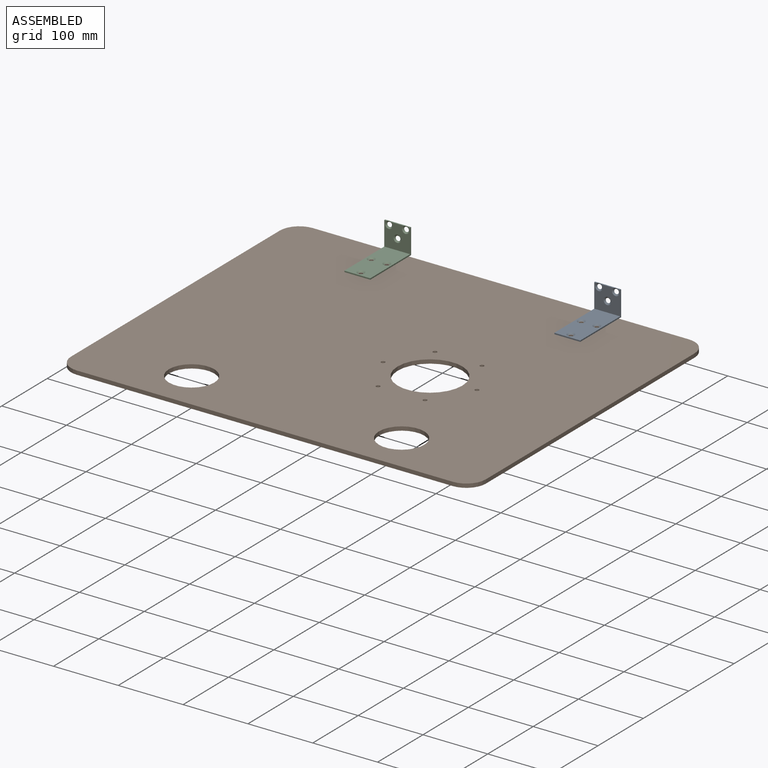
[diagram: assembled view]
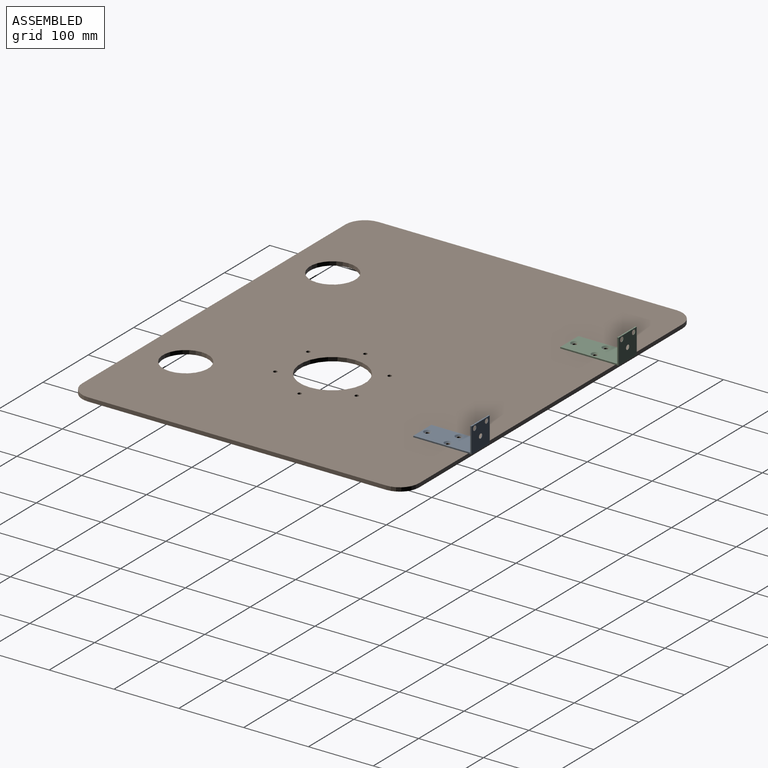
[diagram: assembled view, second angle]
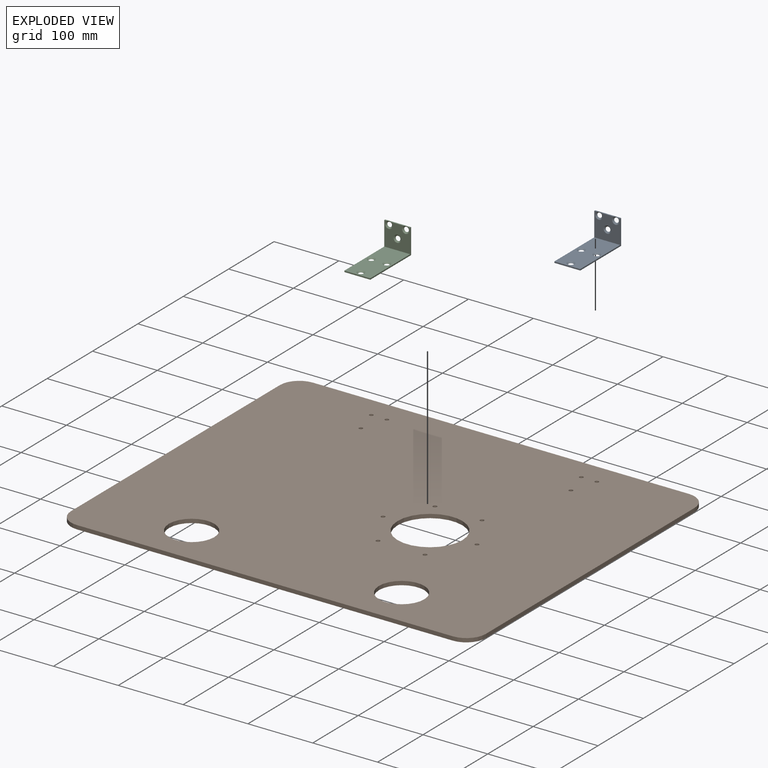
[diagram: exploded view]
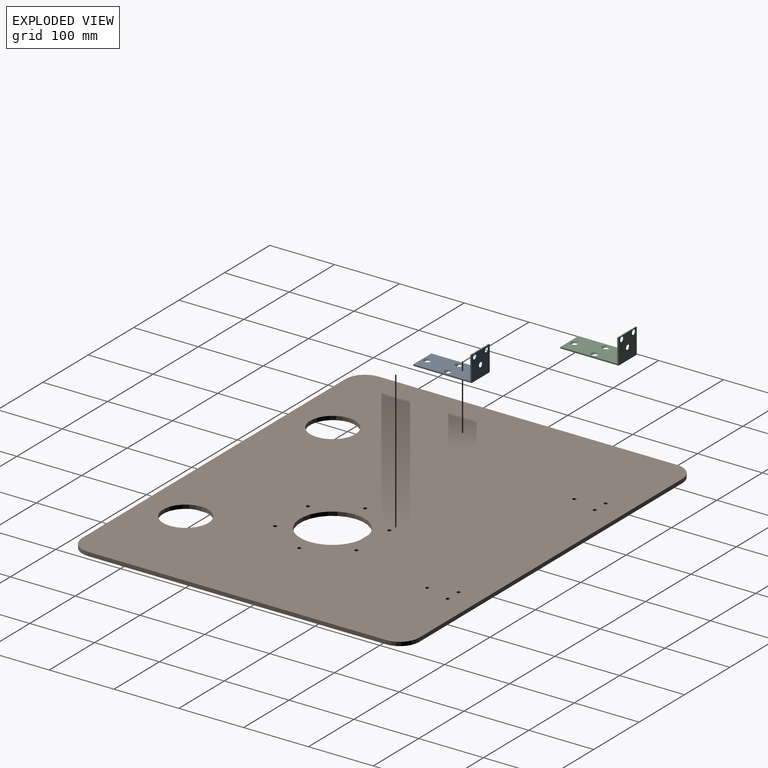
[diagram: exploded view, second angle]
ASSEMBLY  parts=3 mates=2
PART A: 14 faces, bbox 90x40x39.6 mm
  f0: plane 40x2mm, normal (0,0,1), area 76mm2, adj f3,f4,f6,f7,f12,f13
  f1: plane 40x2mm, normal (-1,0,0), area 80mm2, adj f2,f5,f6,f7
  f2: plane 90x40mm, normal (0,0,-1), area 3477.9mm2, adj f1,f3,f6,f7,f8,f9,f10
  f3: plane 40x39mm, normal (1,0,0), area 1437.9mm2, adj f0,f2,f6,f7,f11,f12,f13
  f4: plane 40x37mm, normal (-1,0,0), area 1188.5mm2, adj f0,f5,f6,f7,f11,f12,f13
  f5: plane 88x40mm, normal (0,0,1), area 3224.4mm2, adj f1,f4,f6,f7,f8,f9,f10
  f6: plane 90x39mm, normal (0,-1,0), area 254mm2, adj f0,f1,f2,f3,f4,f5
  f7: plane 90x39mm, normal (0,1,0), area 254mm2, adj f0,f1,f2,f3,f4,f5
  f8: cone r=2.65mm half-angle=45deg, axis (0,0,1), area 81.7mm2, adj f2,f5
  f9: cone r=2.65mm half-angle=45deg, axis (0,0,1), area 81.7mm2, adj f2,f5
  f10: cone r=2.65mm half-angle=45deg, axis (0,0,1), area 81.7mm2, adj f2,f5
  f11: cone r=2.65mm half-angle=45deg, axis (-1,0,0), area 81.7mm2, adj f3,f4
  f12: cone r=2.65mm half-angle=45deg, axis (-1,0,0), area 78.9mm2, adj f0,f3,f4
  f13: cone r=2.65mm half-angle=45deg, axis (-1,0,0), area 78.9mm2, adj f0,f3,f4
PART B: 25 faces, bbox 640x520x6 mm
  f0: plane 580x6mm, normal (0,1,0), area 3480mm2, adj f4,f5,f7,f10
  f1: plane 460x6mm, normal (-1,0,0), area 2760mm2, adj f4,f5,f7,f8
  f2: plane 580x6mm, normal (0,-1,0), area 3480mm2, adj f4,f5,f8,f9
  f3: plane 460x6mm, normal (1,0,0), area 2760mm2, adj f4,f5,f9,f10
  f4: plane 640x520mm, normal (0,0,1), area 316148.4mm2, adj f0,f1,f2,f3,f6,f7,f8,f9
  f5: plane 640x520mm, normal (0,0,-1), area 316148.4mm2, adj f0,f1,f2,f3,f6,f7,f8,f9
  f6: cylinder r=50mm len=100mm, axis (0,0,1), area 1885mm2, adj f4,f5
  f7: cylinder r=30mm len=30mm, axis (0,0,1), area 282.7mm2, adj f0,f1,f4,f5
  f8: cylinder r=30mm len=30mm, axis (0,0,-1), area 282.7mm2, adj f1,f2,f4,f5
  f9: cylinder r=30mm len=30mm, axis (0,0,1), area 282.7mm2, adj f2,f3,f4,f5
  f10: cylinder r=30mm len=30mm, axis (0,0,-1), area 282.7mm2, adj f0,f3,f4,f5
  f11: cylinder r=2.9mm len=6mm, axis (0,0,1), area 109.3mm2, adj f4,f5
  f12: cylinder r=2.9mm len=6mm, axis (0,0,1), area 109.3mm2, adj f4,f5
  f13: cylinder r=2.9mm len=6mm, axis (0,0,1), area 109.3mm2, adj f4,f5
  f14: cylinder r=2.9mm len=6mm, axis (0,0,1), area 109.3mm2, adj f4,f5
  f15: cylinder r=2.9mm len=6mm, axis (0,0,1), area 109.3mm2, adj f4,f5
  f16: cylinder r=2.9mm len=6mm, axis (0,0,1), area 109.3mm2, adj f4,f5
  f17: cylinder r=3mm len=6mm, axis (0,0,1), area 113.1mm2, adj f4,f5
  f18: cylinder r=3mm len=6mm, axis (0,0,1), area 113.1mm2, adj f4,f5
  f19: cylinder r=3mm len=6mm, axis (0,0,1), area 113.1mm2, adj f4,f5
  f20: cylinder r=3mm len=6mm, axis (0,0,1), area 113.1mm2, adj f4,f5
  f21: cylinder r=3mm len=6mm, axis (0,0,1), area 113.1mm2, adj f4,f5
  f22: cylinder r=3mm len=6mm, axis (0,0,1), area 113.1mm2, adj f4,f5
  f23: cylinder r=35mm len=70mm, axis (0,0,1), area 1319.5mm2, adj f4,f5
  f24: cylinder r=35mm len=70mm, axis (0,0,1), area 1319.5mm2, adj f4,f5
PART C: same geometry as A
PLACE A rot(axis=(0,0,1),90deg) t=(136.84,165.35,4.19)mm
PLACE B t=(-325.16,250.35,-1.81)mm fixed
PLACE C rot(axis=(0,0,1),90deg) t=(-187.16,165.35,4.19)mm
MATE fastened C.f8 <-> B.f11  axis (0,0,-1) through (-179.16,213.35,4.19)mm
MATE fastened A.f9 <-> B.f16  axis (0,0,1) through (156.84,173.35,4.19)mm
